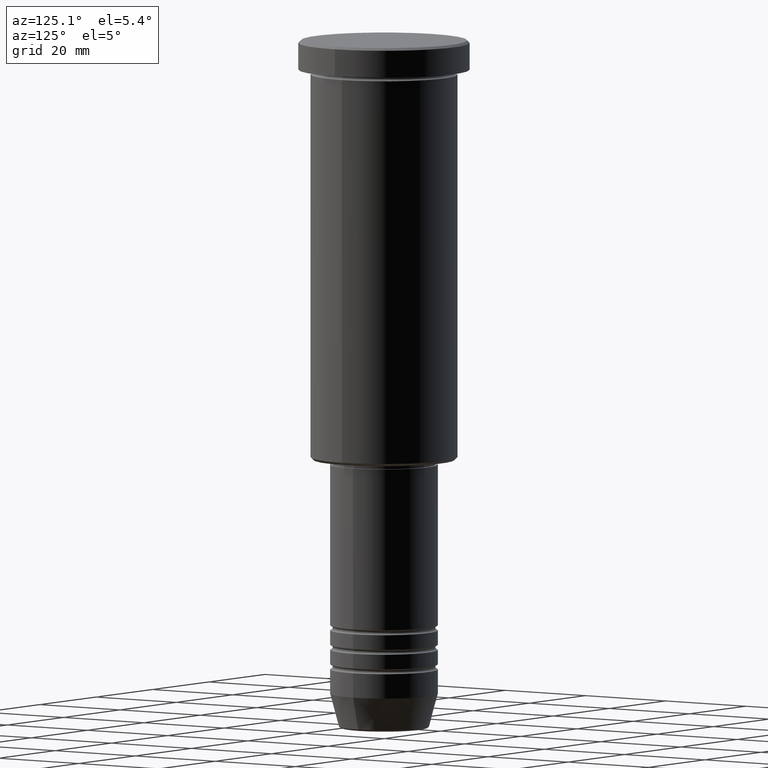
[diagram: clean part render]
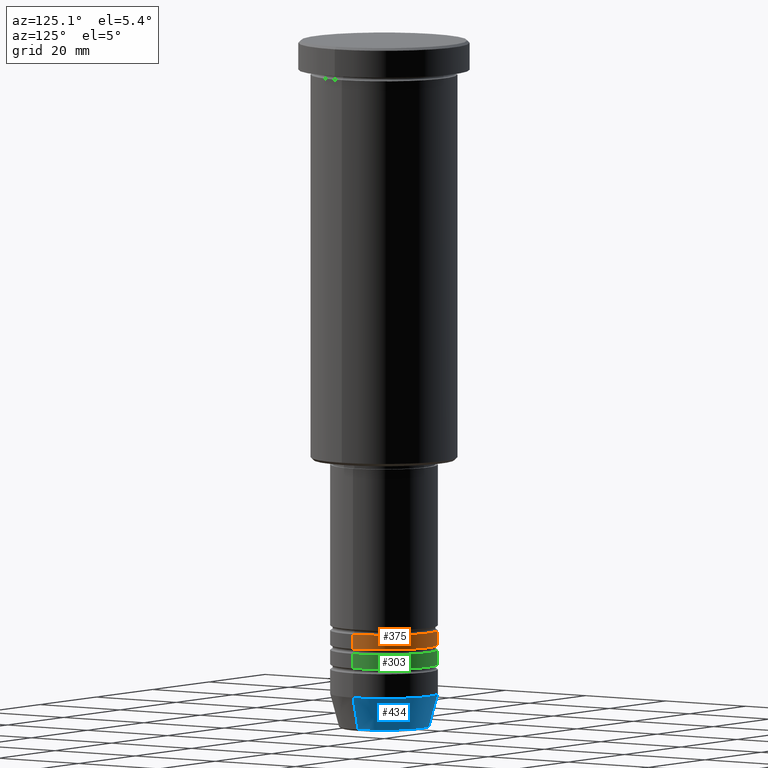
[diagram: same view with three faces highlighted in distinct colors, each labeled with its STEP entity id]
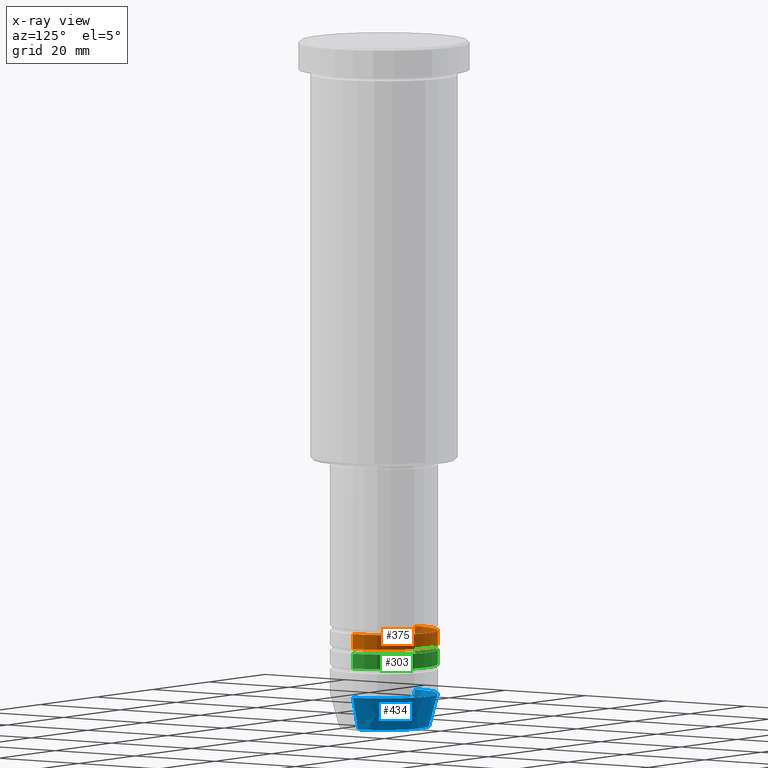
[diagram: x-ray of the same camera — body ghosted, the three highlighted faces saturated]
A machine part, auxiliary view with three faces highlighted in distinct colors.
The next image is the same camera in x-ray (body ghosted, the three faces saturated) — at least one of them is partly hidden behind the body in this view.
Their STEP definitions:

[orange] entity #375 — the highlighted cylindrical surface (partial cylindrical patch) has radius 11 mm, axis along (-0, -0, 1).
#18 = CARTESIAN_POINT ( 'NONE',  ( -11.00000000000000000, 1.347111479062088602E-15, -120.9999999999999005 ) ) ;
#48 = EDGE_CURVE ( 'NONE', #904, #1015, #231, .T. ) ;
#58 = VERTEX_POINT ( 'NONE', #206 ) ;
#76 = AXIS2_PLACEMENT_3D ( 'NONE', #784, #690, #674 ) ;
#87 = FACE_OUTER_BOUND ( 'NONE', #569, .T. ) ;
#128 = DIRECTION ( 'NONE',  ( -0.000000000000000000, -0.000000000000000000, 1.000000000000000000 ) ) ;
#206 = CARTESIAN_POINT ( 'NONE',  ( 11.00000000000000000, 0.000000000000000000, -120.9999999999999005 ) ) ;
#219 = AXIS2_PLACEMENT_3D ( 'NONE', #379, #1108, #1139 ) ;
#231 = CIRCLE ( 'NONE', #516, 11.00000000000000355 ) ;
#250 = ORIENTED_EDGE ( 'NONE', *, *, #964, .F. ) ;
#312 = DIRECTION ( 'NONE',  ( -0.000000000000000000, -0.000000000000000000, 1.000000000000000000 ) ) ;
#346 = VERTEX_POINT ( 'NONE', #18 ) ;
#373 = ORIENTED_EDGE ( 'NONE', *, *, #48, .T. ) ;
#375 = ADVANCED_FACE ( 'NONE', ( #87 ), #469, .T. ) ;
#379 = CARTESIAN_POINT ( 'NONE',  ( 0.000000000000000000, 0.000000000000000000, 0.000000000000000000 ) ) ;
#424 = CIRCLE ( 'NONE', #76, 11.00000000000000000 ) ;
#469 = CYLINDRICAL_SURFACE ( 'NONE', #219, 11.00000000000000178 ) ;
#487 = CARTESIAN_POINT ( 'NONE',  ( -11.00000000000000355, 1.347111479062088996E-15, -123.9999999999999147 ) ) ;
#516 = AXIS2_PLACEMENT_3D ( 'NONE', #756, #312, #1131 ) ;
#569 = EDGE_LOOP ( 'NONE', ( #373, #1147, #889, #250 ) ) ;
#590 = DIRECTION ( 'NONE',  ( -0.000000000000000000, -0.000000000000000000, 1.000000000000000000 ) ) ;
#674 = DIRECTION ( 'NONE',  ( 1.000000000000000000, 0.000000000000000000, 0.000000000000000000 ) ) ;
#690 = DIRECTION ( 'NONE',  ( -0.000000000000000000, -0.000000000000000000, 1.000000000000000000 ) ) ;
#756 = CARTESIAN_POINT ( 'NONE',  ( 0.000000000000000000, 0.000000000000000000, -123.9999999999999147 ) ) ;
#774 = CARTESIAN_POINT ( 'NONE',  ( -11.00000000000000178, 1.347111479062088602E-15, 0.000000000000000000 ) ) ;
#784 = CARTESIAN_POINT ( 'NONE',  ( 0.000000000000000000, 0.000000000000000000, -120.9999999999999005 ) ) ;
#860 = VECTOR ( 'NONE', #590, 1000.000000000000000 ) ;
#861 = LINE ( 'NONE', #774, #860 ) ;
#870 = CARTESIAN_POINT ( 'NONE',  ( 11.00000000000000178, 0.000000000000000000, 0.000000000000000000 ) ) ;
#880 = CARTESIAN_POINT ( 'NONE',  ( 11.00000000000000355, 0.000000000000000000, -123.9999999999999147 ) ) ;
#889 = ORIENTED_EDGE ( 'NONE', *, *, #1043, .F. ) ;
#904 = VERTEX_POINT ( 'NONE', #880 ) ;
#964 = EDGE_CURVE ( 'NONE', #904, #58, #965, .T. ) ;
#965 = LINE ( 'NONE', #870, #978 ) ;
#978 = VECTOR ( 'NONE', #128, 1000.000000000000000 ) ;
#1015 = VERTEX_POINT ( 'NONE', #487 ) ;
#1043 = EDGE_CURVE ( 'NONE', #58, #346, #424, .T. ) ;
#1068 = EDGE_CURVE ( 'NONE', #1015, #346, #861, .T. ) ;
#1108 = DIRECTION ( 'NONE',  ( -0.000000000000000000, -0.000000000000000000, 1.000000000000000000 ) ) ;
#1131 = DIRECTION ( 'NONE',  ( 1.000000000000000000, 0.000000000000000000, 0.000000000000000000 ) ) ;
#1139 = DIRECTION ( 'NONE',  ( 1.000000000000000000, 0.000000000000000000, 0.000000000000000000 ) ) ;
#1147 = ORIENTED_EDGE ( 'NONE', *, *, #1068, .T. ) ;

[blue] entity #434 — the highlighted conical surface has half-angle 15 deg.
#41 = CARTESIAN_POINT ( 'NONE',  ( 0.000000000000000000, 0.000000000000000000, -140.6294095225512706 ) ) ;
#67 = CARTESIAN_POINT ( 'NONE',  ( -11.00000000000000000, 1.347111479062088405E-15, -134.0000000000000000 ) ) ;
#96 = VECTOR ( 'NONE', #932, 1000.000000000000000 ) ;
#100 = CIRCLE ( 'NONE', #575, 9.223655072137189492 ) ;
#150 = CONICAL_SURFACE ( 'NONE', #380, 11.00000000000000000, 0.2617993877991500740 ) ;
#171 = CARTESIAN_POINT ( 'NONE',  ( -9.223655072137189492, 1.238341722557647202E-15, -140.6294095225512706 ) ) ;
#199 = CIRCLE ( 'NONE', #1013, 11.00000000000000000 ) ;
#227 = ORIENTED_EDGE ( 'NONE', *, *, #342, .T. ) ;
#281 = VERTEX_POINT ( 'NONE', #171 ) ;
#304 = DIRECTION ( 'NONE',  ( 0.2588190451025213501, 0.000000000000000000, 0.9659258262890680902 ) ) ;
#310 = VERTEX_POINT ( 'NONE', #625 ) ;
#333 = DIRECTION ( 'NONE',  ( -0.000000000000000000, -0.000000000000000000, 1.000000000000000000 ) ) ;
#342 = EDGE_CURVE ( 'NONE', #281, #645, #839, .T. ) ;
#363 = DIRECTION ( 'NONE',  ( 1.000000000000000000, 0.000000000000000000, 0.000000000000000000 ) ) ;
#380 = AXIS2_PLACEMENT_3D ( 'NONE', #1178, #540, #363 ) ;
#421 = DIRECTION ( 'NONE',  ( -0.000000000000000000, -0.000000000000000000, 1.000000000000000000 ) ) ;
#429 = CARTESIAN_POINT ( 'NONE',  ( 0.000000000000000000, 0.000000000000000000, -134.0000000000000000 ) ) ;
#434 = ADVANCED_FACE ( 'NONE', ( #648 ), #150, .T. ) ;
#485 = VERTEX_POINT ( 'NONE', #1004 ) ;
#526 = EDGE_LOOP ( 'NONE', ( #816, #227, #688, #678 ) ) ;
#540 = DIRECTION ( 'NONE',  ( -0.000000000000000000, -0.000000000000000000, 1.000000000000000000 ) ) ;
#575 = AXIS2_PLACEMENT_3D ( 'NONE', #41, #421, #788 ) ;
#604 = EDGE_CURVE ( 'NONE', #310, #485, #768, .T. ) ;
#625 = CARTESIAN_POINT ( 'NONE',  ( 9.223655072137189492, 0.000000000000000000, -140.6294095225512706 ) ) ;
#645 = VERTEX_POINT ( 'NONE', #693 ) ;
#648 = FACE_OUTER_BOUND ( 'NONE', #526, .T. ) ;
#678 = ORIENTED_EDGE ( 'NONE', *, *, #604, .F. ) ;
#688 = ORIENTED_EDGE ( 'NONE', *, *, #695, .F. ) ;
#693 = CARTESIAN_POINT ( 'NONE',  ( -11.00000000000000000, 1.347111479062088405E-15, -134.0000000000000000 ) ) ;
#695 = EDGE_CURVE ( 'NONE', #485, #645, #199, .T. ) ;
#701 = DIRECTION ( 'NONE',  ( 1.000000000000000000, 0.000000000000000000, 0.000000000000000000 ) ) ;
#768 = LINE ( 'NONE', #1129, #786 ) ;
#786 = VECTOR ( 'NONE', #304, 1000.000000000000000 ) ;
#788 = DIRECTION ( 'NONE',  ( 1.000000000000000000, 0.000000000000000000, 0.000000000000000000 ) ) ;
#816 = ORIENTED_EDGE ( 'NONE', *, *, #969, .T. ) ;
#839 = LINE ( 'NONE', #67, #96 ) ;
#932 = DIRECTION ( 'NONE',  ( -0.2588190451025213501, 3.169619151431772337E-17, 0.9659258262890680902 ) ) ;
#969 = EDGE_CURVE ( 'NONE', #310, #281, #100, .T. ) ;
#1004 = CARTESIAN_POINT ( 'NONE',  ( 11.00000000000000000, 0.000000000000000000, -134.0000000000000000 ) ) ;
#1013 = AXIS2_PLACEMENT_3D ( 'NONE', #429, #333, #701 ) ;
#1129 = CARTESIAN_POINT ( 'NONE',  ( 11.00000000000000000, 0.000000000000000000, -134.0000000000000000 ) ) ;
#1178 = CARTESIAN_POINT ( 'NONE',  ( 0.000000000000000000, 0.000000000000000000, -134.0000000000000000 ) ) ;

[green] entity #303 — the highlighted cylindrical surface (partial cylindrical patch) has radius 11 mm, axis along (-0, -0, 1).
#13 = AXIS2_PLACEMENT_3D ( 'NONE', #1094, #448, #918 ) ;
#145 = EDGE_CURVE ( 'NONE', #850, #386, #614, .T. ) ;
#164 = CYLINDRICAL_SURFACE ( 'NONE', #13, 11.00000000000000000 ) ;
#303 = ADVANCED_FACE ( 'NONE', ( #834 ), #164, .T. ) ;
#337 = CIRCLE ( 'NONE', #1084, 11.00000000000000000 ) ;
#371 = ORIENTED_EDGE ( 'NONE', *, *, #145, .F. ) ;
#386 = VERTEX_POINT ( 'NONE', #1146 ) ;
#388 = CARTESIAN_POINT ( 'NONE',  ( 0.000000000000000000, 0.000000000000000000, -127.9999999999998863 ) ) ;
#405 = VECTOR ( 'NONE', #983, 1000.000000000000000 ) ;
#436 = CIRCLE ( 'NONE', #914, 11.00000000000000000 ) ;
#448 = DIRECTION ( 'NONE',  ( -0.000000000000000000, -0.000000000000000000, 1.000000000000000000 ) ) ;
#503 = LINE ( 'NONE', #984, #405 ) ;
#507 = ORIENTED_EDGE ( 'NONE', *, *, #663, .F. ) ;
#514 = DIRECTION ( 'NONE',  ( 1.000000000000000000, 0.000000000000000000, 0.000000000000000000 ) ) ;
#524 = DIRECTION ( 'NONE',  ( -0.000000000000000000, -0.000000000000000000, 1.000000000000000000 ) ) ;
#588 = ORIENTED_EDGE ( 'NONE', *, *, #595, .T. ) ;
#595 = EDGE_CURVE ( 'NONE', #850, #718, #337, .T. ) ;
#603 = CARTESIAN_POINT ( 'NONE',  ( -11.00000000000000000, 1.347111479062088405E-15, -124.9999999999998863 ) ) ;
#614 = LINE ( 'NONE', #1069, #1159 ) ;
#663 = EDGE_CURVE ( 'NONE', #386, #689, #436, .T. ) ;
#689 = VERTEX_POINT ( 'NONE', #603 ) ;
#718 = VERTEX_POINT ( 'NONE', #1026 ) ;
#740 = EDGE_LOOP ( 'NONE', ( #588, #1116, #507, #371 ) ) ;
#834 = FACE_OUTER_BOUND ( 'NONE', #740, .T. ) ;
#843 = DIRECTION ( 'NONE',  ( 1.000000000000000000, 0.000000000000000000, 0.000000000000000000 ) ) ;
#850 = VERTEX_POINT ( 'NONE', #1030 ) ;
#873 = CARTESIAN_POINT ( 'NONE',  ( 0.000000000000000000, 0.000000000000000000, -124.9999999999998863 ) ) ;
#914 = AXIS2_PLACEMENT_3D ( 'NONE', #873, #1162, #514 ) ;
#918 = DIRECTION ( 'NONE',  ( 1.000000000000000000, 0.000000000000000000, 0.000000000000000000 ) ) ;
#983 = DIRECTION ( 'NONE',  ( -0.000000000000000000, -0.000000000000000000, 1.000000000000000000 ) ) ;
#984 = CARTESIAN_POINT ( 'NONE',  ( -11.00000000000000000, 1.347111479062088405E-15, 0.000000000000000000 ) ) ;
#1026 = CARTESIAN_POINT ( 'NONE',  ( -11.00000000000000000, 1.347111479062088405E-15, -127.9999999999998863 ) ) ;
#1030 = CARTESIAN_POINT ( 'NONE',  ( 11.00000000000000000, 0.000000000000000000, -127.9999999999998863 ) ) ;
#1069 = CARTESIAN_POINT ( 'NONE',  ( 11.00000000000000000, 0.000000000000000000, 0.000000000000000000 ) ) ;
#1076 = EDGE_CURVE ( 'NONE', #718, #689, #503, .T. ) ;
#1084 = AXIS2_PLACEMENT_3D ( 'NONE', #388, #1117, #843 ) ;
#1094 = CARTESIAN_POINT ( 'NONE',  ( 0.000000000000000000, 0.000000000000000000, 0.000000000000000000 ) ) ;
#1116 = ORIENTED_EDGE ( 'NONE', *, *, #1076, .T. ) ;
#1117 = DIRECTION ( 'NONE',  ( -0.000000000000000000, -0.000000000000000000, 1.000000000000000000 ) ) ;
#1146 = CARTESIAN_POINT ( 'NONE',  ( 11.00000000000000000, 0.000000000000000000, -124.9999999999998863 ) ) ;
#1159 = VECTOR ( 'NONE', #524, 1000.000000000000000 ) ;
#1162 = DIRECTION ( 'NONE',  ( -0.000000000000000000, -0.000000000000000000, 1.000000000000000000 ) ) ;